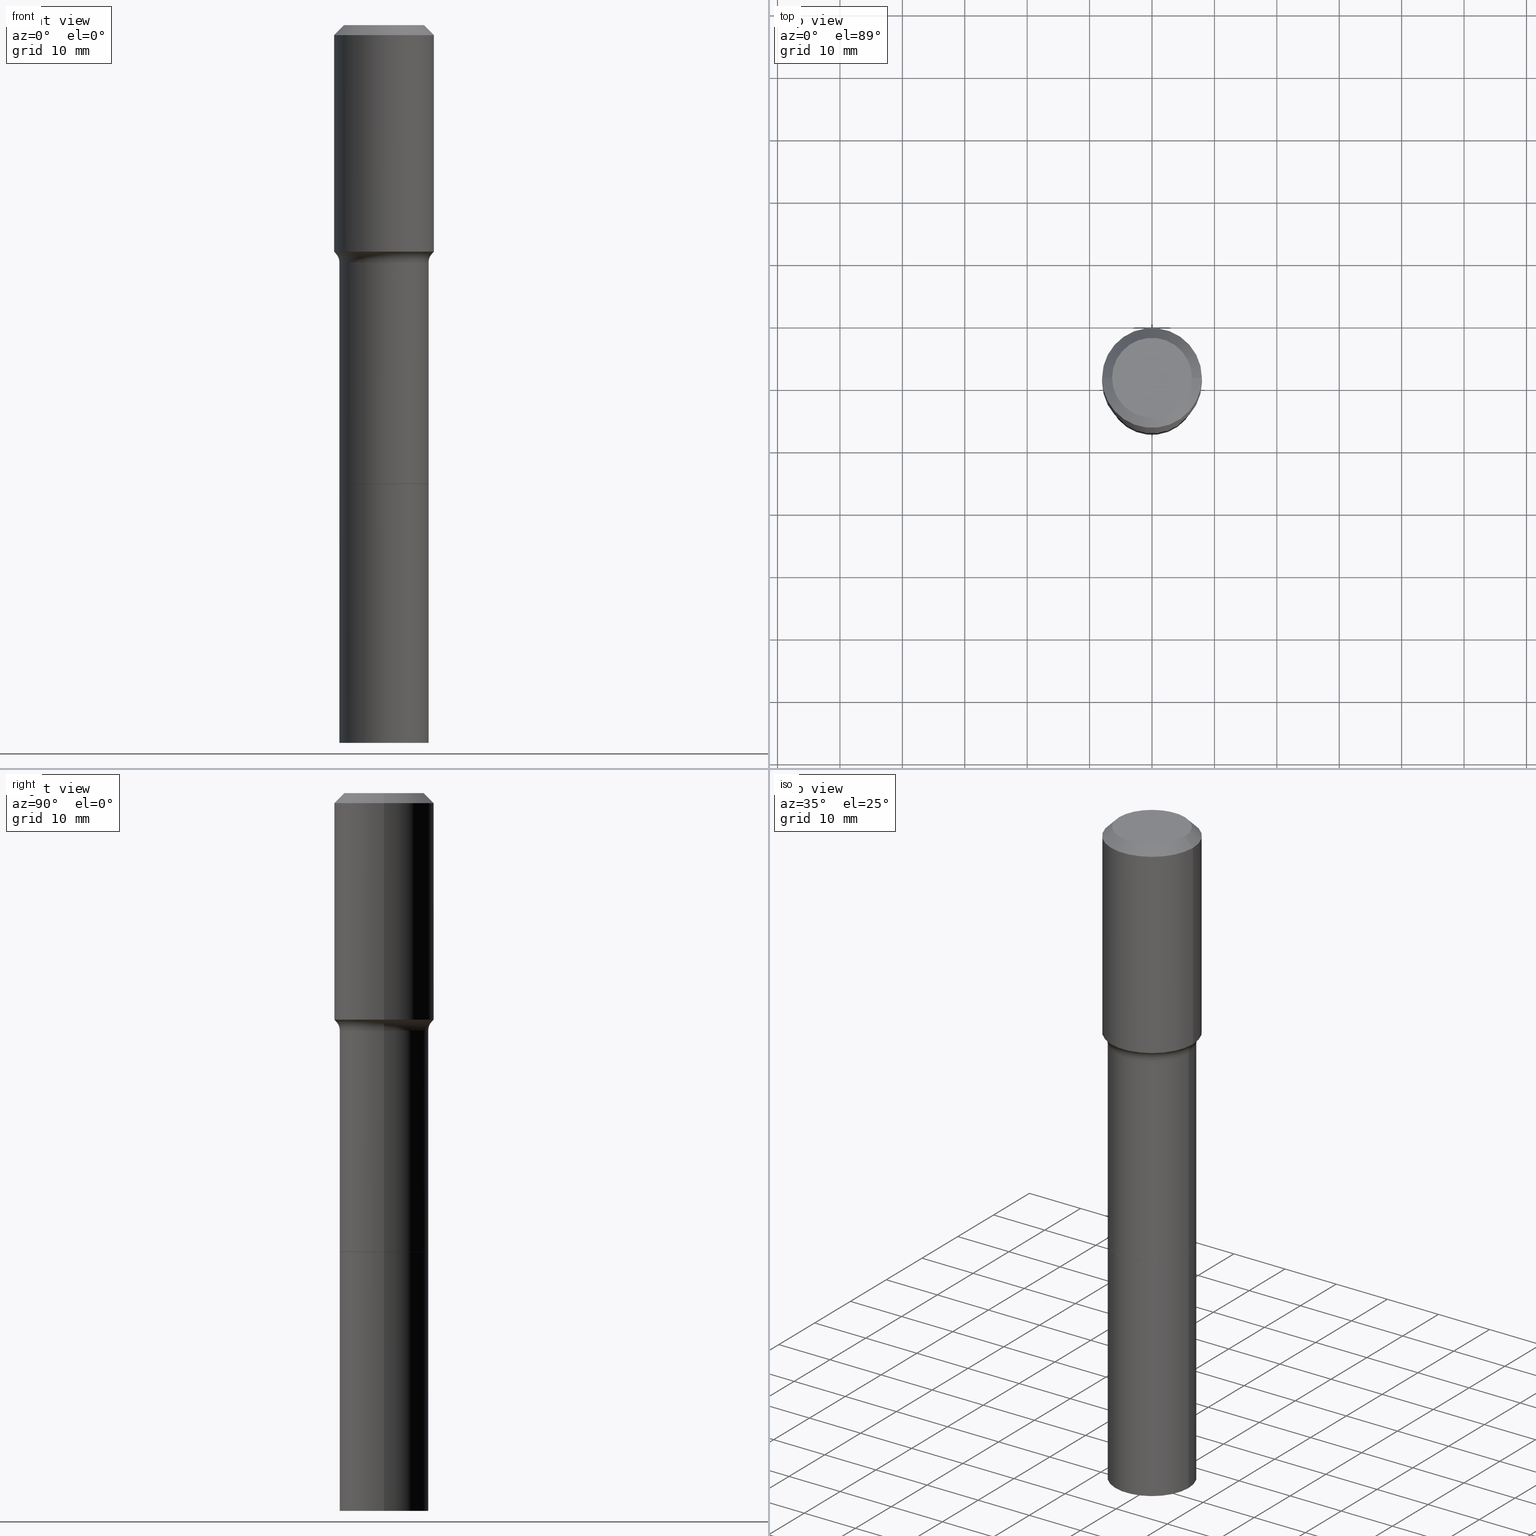
[diagram: canonical four-view strip — front | top / right | iso, engineering-drawing reading convention]
A machine part, canonical four-view strip (front | top / right | iso — engineering-drawing reading convention). The complete STEP part file that produces these views, byte-faithful:
ISO-10303-21;
HEADER;
FILE_DESCRIPTION (( 'STEP AP203' ),
    '1' );
FILE_NAME ('58849.STEP',
    '2025-04-01T15:25:43',
    ( '' ),
    ( '' ),
    'SwSTEP 2.0',
    'SolidWorks 2024',
    '' );
FILE_SCHEMA (( 'CONFIG_CONTROL_DESIGN' ));
ENDSEC;

DATA;
#1 = PERSON_AND_ORGANIZATION ( #7, #248 ) ;
#2 = VERTEX_POINT ( 'NONE', #342 ) ;
#3 = ADVANCED_FACE ( 'NONE', ( #262 ), #164, .T. ) ;
#4 = COORDINATED_UNIVERSAL_TIME_OFFSET ( 5, 0, .BEHIND. ) ;
#5 = AXIS2_PLACEMENT_3D ( 'NONE', #422, #339, #21 ) ;
#6 = CLOSED_SHELL ( 'NONE', ( #308, #192, #93, #298 ) ) ;
#7 = PERSON ( 'UNSPECIFIED', 'UNSPECIFIED', 'UNSPECIFIED', ('UNSPECIFIED'), ('UNSPECIFIED'), ('UNSPECIFIED') ) ;
#8 = EDGE_CURVE ( 'NONE', #120, #469, #272, .T. ) ;
#9 = EDGE_CURVE ( 'NONE', #353, #430, #295, .T. ) ;
#10 = PLANE ( 'NONE',  #293 ) ;
#11 = FACE_OUTER_BOUND ( 'NONE', #440, .T. ) ;
#12 = VECTOR ( 'NONE', #411, 39.37007874015748143 ) ;
#13 = AXIS2_PLACEMENT_3D ( 'NONE', #140, #345, #225 ) ;
#14 = CYLINDRICAL_SURFACE ( 'NONE', #125, 0.2812500000000000000 ) ;
#15 = DIRECTION ( 'NONE',  ( 1.000000000000000000, -6.982962677686264344E-15, 0.000000000000000000 ) ) ;
#16 = LINE ( 'NONE', #488, #343 ) ;
#17 = CARTESIAN_POINT ( 'NONE',  ( 3.659888615336674630E-29, -5.225350971712649586E-15, -1.496599999999999486 ) ) ;
#18 = DIRECTION ( 'NONE',  ( -1.000000000000000000, 6.982962677686265922E-15, -4.876176775795935793E-29 ) ) ;
#19 = AXIS2_PLACEMENT_3D ( 'NONE', #451, #206, #326 ) ;
#20 = DIRECTION ( 'NONE',  ( 1.000000000000000000, -6.982962677686266711E-15, 0.000000000000000000 ) ) ;
#21 = DIRECTION ( 'NONE',  ( 1.000000000000000000, -6.982962677686266711E-15, 0.000000000000000000 ) ) ;
#22 = AXIS2_PLACEMENT_3D ( 'NONE', #32, #100, #20 ) ;
#23 = ORIENTED_EDGE ( 'NONE', *, *, #261, .T. ) ;
#24 = DIMENSIONAL_EXPONENTS ( 1.000000000000000000, 0.000000000000000000, 0.000000000000000000, 0.000000000000000000, 0.000000000000000000, 0.000000000000000000, 0.000000000000000000 ) ;
#25 = EDGE_CURVE ( 'NONE', #469, #480, #136, .T. ) ;
#26 = DIRECTION ( 'NONE',  ( 1.000000000000000000, -6.982962677686265922E-15, 4.876176775795935232E-29 ) ) ;
#27 = CARTESIAN_POINT ( 'NONE',  ( 3.659888615336674630E-29, -5.225350971712649586E-15, -1.496599999999999486 ) ) ;
#28 = CARTESIAN_POINT ( 'NONE',  ( 0.000000000000000000, 0.000000000000000000, 0.000000000000000000 ) ) ;
#29 = LINE ( 'NONE', #304, #219 ) ;
#30 = EDGE_LOOP ( 'NONE', ( #121, #427, #34, #504 ) ) ;
#31 = CLOSED_SHELL ( 'NONE', ( #230, #393, #360, #3, #449, #72, #184, #280, #286, #375, #428, #124, #224, #137 ) ) ;
#32 = CARTESIAN_POINT ( 'NONE',  ( 3.526464158104493738E-29, -5.034856207930263103E-15, -1.442040131194999741 ) ) ;
#33 = EDGE_CURVE ( 'NONE', #482, #372, #483, .T. ) ;
#34 = ORIENTED_EDGE ( 'NONE', *, *, #232, .T. ) ;
#35 = EDGE_LOOP ( 'NONE', ( #113, #275 ) ) ;
#36 = CIRCLE ( 'NONE', #22, 0.3027417038704665608 ) ;
#37 = APPROVAL_ROLE ( '' ) ;
#38 = DIRECTION ( 'NONE',  ( -1.000000000000000000, 7.105427357601001859E-15, 0.000000000000000000 ) ) ;
#39 = EDGE_LOOP ( 'NONE', ( #384, #148, #507, #446 ) ) ;
#40 = VERTEX_POINT ( 'NONE', #227 ) ;
#41 = AXIS2_PLACEMENT_3D ( 'NONE', #294, #204, #15 ) ;
#42 = CALENDAR_DATE ( 2025, 1, 4 ) ;
#43 = ORIENTED_EDGE ( 'NONE', *, *, #64, .T. ) ;
#44 = LOCAL_TIME ( 11, 25, 43.00000000000000000, #4 ) ;
#45 = EDGE_CURVE ( 'NONE', #273, #2, #142, .T. ) ;
#46 = PERSON_AND_ORGANIZATION_ROLE ( 'design_supplier' ) ;
#47 = DATE_AND_TIME ( #80, #169 ) ;
#48 = EDGE_CURVE ( 'NONE', #40, #183, #95, .T. ) ;
#49 = CONICAL_SURFACE ( 'NONE', #197, 0.2807499999999999996, 0.7853981633973118326 ) ;
#50 = EDGE_CURVE ( 'NONE', #320, #2, #455, .T. ) ;
#51 = LINE ( 'NONE', #405, #495 ) ;
#52 = DIRECTION ( 'NONE',  ( 1.000000000000000000, -6.982962677686269866E-15, 0.000000000000000000 ) ) ;
#53 = FACE_OUTER_BOUND ( 'NONE', #186, .T. ) ;
#54 = CARTESIAN_POINT ( 'NONE',  ( 7.078654006383494547E-29, -1.010644188341536605E-14, -2.894599999999999174 ) ) ;
#55 = CARTESIAN_POINT ( 'NONE',  ( 7.078654006383494547E-29, -1.010644188341536605E-14, -2.894599999999999174 ) ) ;
#56 = AXIS2_PLACEMENT_3D ( 'NONE', #166, #325, #130 ) ;
#57 = AXIS2_PLACEMENT_3D ( 'NONE', #458, #176, #288 ) ;
#58 = AXIS2_PLACEMENT_3D ( 'NONE', #392, #85, #231 ) ;
#59 = DIRECTION ( 'NONE',  ( 1.000000000000000000, -6.982962677686266711E-15, 4.876115136096691995E-29 ) ) ;
#60 = CARTESIAN_POINT ( 'NONE',  ( -0.2812499999999998890, -5.666622112904015686E-15, -1.496599999999999486 ) ) ;
#61 = CARTESIAN_POINT ( 'NONE',  ( 0.000000000000000000, 0.000000000000000000, 0.000000000000000000 ) ) ;
#62 = CARTESIAN_POINT ( 'NONE',  ( 0.3149500000000000632, -2.380642253931875584E-15, -0.06299000000000040678 ) ) ;
#63 = CARTESIAN_POINT ( 'NONE',  ( 7.078654006383494547E-29, -1.010644188341536605E-14, -2.894599999999999174 ) ) ;
#64 = EDGE_CURVE ( 'NONE', #320, #469, #51, .T. ) ;
#65 = VECTOR ( 'NONE', #171, 39.37007874015748143 ) ;
#66 = FACE_OUTER_BOUND ( 'NONE', #357, .T. ) ;
#67 = DIRECTION ( 'NONE',  ( 1.000000000000000000, -6.982962677686269866E-15, 0.000000000000000000 ) ) ;
#68 = VECTOR ( 'NONE', #267, 39.37007874015748854 ) ;
#69 = DIRECTION ( 'NONE',  ( 1.000000000000000000, -6.982962677686269866E-15, 0.000000000000000000 ) ) ;
#70 = CARTESIAN_POINT ( 'NONE',  ( 0.3027417038704663943, -7.148890227036876772E-15, -1.442040131194999741 ) ) ;
#71 = CARTESIAN_POINT ( 'NONE',  ( 7.078654006383494547E-29, -1.010644188341536605E-14, -2.894599999999999174 ) ) ;
#72 = ADVANCED_FACE ( 'NONE', ( #250 ), #208, .T. ) ;
#73 = DIRECTION ( 'NONE',  ( -2.445468806185136597E-29, 3.491481338843145583E-15, 1.000000000000000000 ) ) ;
#74 = EDGE_LOOP ( 'NONE', ( #388, #391, #278, #418 ) ) ;
#75 = CIRCLE ( 'NONE', #133, 0.2812499999999998890 ) ;
#76 = AXIS2_PLACEMENT_3D ( 'NONE', #266, #471, #426 ) ;
#77 = COORDINATED_UNIVERSAL_TIME_OFFSET ( 5, 0, .BEHIND. ) ;
#78 = DIRECTION ( 'NONE',  ( -2.445468806185136597E-29, 3.491481338843145583E-15, 1.000000000000000000 ) ) ;
#79 = ORIENTED_EDGE ( 'NONE', *, *, #205, .T. ) ;
#80 = CALENDAR_DATE ( 2025, 1, 4 ) ;
#81 = ORIENTED_EDGE ( 'NONE', *, *, #50, .T. ) ;
#82 = EDGE_CURVE ( 'NONE', #429, #372, #16, .T. ) ;
#83 = ORIENTED_EDGE ( 'NONE', *, *, #354, .T. ) ;
#84 = CIRCLE ( 'NONE', #41, 0.2807499999999999996 ) ;
#85 = DIRECTION ( 'NONE',  ( 0.000000000000000000, 0.000000000000000000, 1.000000000000000000 ) ) ;
#86 = ORIENTED_EDGE ( 'NONE', *, *, #98, .F. ) ;
#87 = TOROIDAL_SURFACE ( 'NONE', #424, 0.3612499999999998490, 0.07999999999999996003 ) ;
#88 = CIRCLE ( 'NONE', #366, 0.2812500000000000000 ) ;
#89 = SECURITY_CLASSIFICATION ( '', '', #270 ) ;
#90 = DIRECTION ( 'NONE',  ( -2.445468806185136597E-29, 3.491481338843145583E-15, 1.000000000000000000 ) ) ;
#91 = FACE_OUTER_BOUND ( 'NONE', #234, .T. ) ;
#92 = FACE_OUTER_BOUND ( 'NONE', #39, .T. ) ;
#93 = ADVANCED_FACE ( 'NONE', ( #92 ), #409, .T. ) ;
#94 = CARTESIAN_POINT ( 'NONE',  ( -9.427742298522569579E-47, 1.346031739168368629E-32, 3.855188123715871501E-18 ) ) ;
#95 = CIRCLE ( 'NONE', #434, 0.2812500000000000000 ) ;
#96 = DIRECTION ( 'NONE',  ( 1.000000000000000000, -6.982962677686266711E-15, 0.000000000000000000 ) ) ;
#97 = CARTESIAN_POINT ( 'NONE',  ( -0.2807499999999999996, -8.111593152768885961E-15, -2.894599999999999174 ) ) ;
#98 = EDGE_CURVE ( 'NONE', #353, #429, #364, .T. ) ;
#99 = EDGE_CURVE ( 'NONE', #376, #40, #456, .T. ) ;
#100 = DIRECTION ( 'NONE',  ( -2.445468806185136597E-29, 3.491481338843145583E-15, 1.000000000000000000 ) ) ;
#101 = CARTESIAN_POINT ( 'NONE',  ( 7.078654006383494547E-29, -1.010644188341536605E-14, -2.894599999999999174 ) ) ;
#102 = DIRECTION ( 'NONE',  ( 2.445468806185136597E-29, -3.491481338843145583E-15, -1.000000000000000000 ) ) ;
#103 = FACE_OUTER_BOUND ( 'NONE', #359, .T. ) ;
#104 = DIRECTION ( 'NONE',  ( -1.000000000000000000, 6.982962677686266711E-15, 0.000000000000000000 ) ) ;
#105 = DIRECTION ( 'NONE',  ( 1.000000000000000000, -6.982962677686265133E-15, 0.000000000000000000 ) ) ;
#106 = LOCAL_TIME ( 11, 25, 43.00000000000000000, #235 ) ;
#107 = ORIENTED_EDGE ( 'NONE', *, *, #9, .F. ) ;
#108 = CARTESIAN_POINT ( 'NONE',  ( 0.3612499999999998490, -7.747946239026812962E-15, -1.496599999999999486 ) ) ;
#109 = EDGE_LOOP ( 'NONE', ( #151, #153 ) ) ;
#110 = ORIENTED_EDGE ( 'NONE', *, *, #354, .F. ) ;
#111 = PERSON_AND_ORGANIZATION ( #7, #248 ) ;
#112 = ORIENTED_EDGE ( 'NONE', *, *, #50, .F. ) ;
#113 = ORIENTED_EDGE ( 'NONE', *, *, #400, .F. ) ;
#114 = AXIS2_PLACEMENT_3D ( 'NONE', #178, #300, #144 ) ;
#115 = PRODUCT_DEFINITION_FORMATION_WITH_SPECIFIED_SOURCE ( 'ANY', '', #182, .NOT_KNOWN. ) ;
#116 = VERTEX_POINT ( 'NONE', #333 ) ;
#117 = ORIENTED_EDGE ( 'NONE', *, *, #415, .T. ) ;
#118 = DATE_AND_TIME ( #42, #44 ) ;
#119 = EDGE_CURVE ( 'NONE', #347, #120, #303, .T. ) ;
#120 = VERTEX_POINT ( 'NONE', #490 ) ;
#121 = ORIENTED_EDGE ( 'NONE', *, *, #119, .F. ) ;
#122 = MECHANICAL_CONTEXT ( 'NONE', #328, 'mechanical' ) ;
#123 = VECTOR ( 'NONE', #331, 39.37007874015748143 ) ;
#124 = ADVANCED_FACE ( 'NONE', ( #255 ), #10, .F. ) ;
#125 = AXIS2_PLACEMENT_3D ( 'NONE', #165, #329, #485 ) ;
#126 = LINE ( 'NONE', #489, #12 ) ;
#127 = CARTESIAN_POINT ( 'NONE',  ( -0.2812500000000000000, -8.108040439090084273E-15, -2.894599999999999174 ) ) ;
#128 = CONICAL_SURFACE ( 'NONE', #448, 0.3149500000000000632, 0.7853981633974456145 ) ;
#129 = EDGE_CURVE ( 'NONE', #116, #376, #88, .T. ) ;
#130 = DIRECTION ( 'NONE',  ( 1.000000000000000000, -6.982962677686264344E-15, 0.000000000000000000 ) ) ;
#131 = CARTESIAN_POINT ( 'NONE',  ( -0.3149500000000002298, -2.751292104515327607E-15, -1.428948336422972032 ) ) ;
#132 = DIRECTION ( 'NONE',  ( 2.438088387897960049E-29, -3.491481338843145188E-15, -1.000000000000000000 ) ) ;
#133 = AXIS2_PLACEMENT_3D ( 'NONE', #216, #371, #105 ) ;
#134 = DIRECTION ( 'NONE',  ( 1.000000000000000000, -6.982962677686269866E-15, 0.000000000000000000 ) ) ;
#135 = EDGE_CURVE ( 'NONE', #430, #353, #84, .T. ) ;
#136 = CIRCLE ( 'NONE', #188, 0.3149500000000000632 ) ;
#137 = ADVANCED_FACE ( 'NONE', ( #11 ), #271, .T. ) ;
#138 = DIRECTION ( 'NONE',  ( -2.445468806185136597E-29, 3.491481338843145583E-15, 1.000000000000000000 ) ) ;
#139 = CARTESIAN_POINT ( 'NONE',  ( 1.107210456688382298E-28, -1.580803090974622389E-14, -4.527599999999999625 ) ) ;
#140 = CARTESIAN_POINT ( 'NONE',  ( 1.540400801016027380E-30, -2.199284095337311367E-16, -0.06299000000000040678 ) ) ;
#141 = LINE ( 'NONE', #425, #155 ) ;
#142 = LINE ( 'NONE', #193, #253 ) ;
#143 = DIRECTION ( 'NONE',  ( -2.445468806185136597E-29, 3.491481338843145583E-15, 1.000000000000000000 ) ) ;
#144 = DIRECTION ( 'NONE',  ( 1.000000000000000000, -6.982962677686268288E-15, 0.000000000000000000 ) ) ;
#145 = EDGE_LOOP ( 'NONE', ( #511, #318, #465, #312 ) ) ;
#146 =( NAMED_UNIT ( * ) PLANE_ANGLE_UNIT ( ) SI_UNIT ( $, .RADIAN. ) );
#147 = AXIS2_PLACEMENT_3D ( 'NONE', #462, #177, #381 ) ;
#148 = ORIENTED_EDGE ( 'NONE', *, *, #129, .T. ) ;
#149 = CARTESIAN_POINT ( 'NONE',  ( 3.526464158104493738E-29, -5.034856207930263103E-15, -1.442040131194999741 ) ) ;
#150 = ORIENTED_EDGE ( 'NONE', *, *, #135, .F. ) ;
#151 = ORIENTED_EDGE ( 'NONE', *, *, #194, .T. ) ;
#152 = PERSON_AND_ORGANIZATION_ROLE ( 'classification_officer' ) ;
#153 = ORIENTED_EDGE ( 'NONE', *, *, #119, .T. ) ;
#154 = EDGE_CURVE ( 'NONE', #116, #183, #486, .T. ) ;
#155 = VECTOR ( 'NONE', #380, 39.37007874015748143 ) ;
#156 = CC_DESIGN_PERSON_AND_ORGANIZATION_ASSIGNMENT ( #474, #191, ( #323 ) ) ;
#157 = COORDINATED_UNIVERSAL_TIME_OFFSET ( 5, 0, .BEHIND. ) ;
#158 = CIRCLE ( 'NONE', #209, 0.07999999999999996003 ) ;
#159 = ORIENTED_EDGE ( 'NONE', *, *, #25, .F. ) ;
#160 = PERSON_AND_ORGANIZATION_ROLE ( 'creator' ) ;
#161 = ORIENTED_EDGE ( 'NONE', *, *, #98, .T. ) ;
#162 = EDGE_CURVE ( 'NONE', #2, #320, #361, .T. ) ;
#163 = PERSON_AND_ORGANIZATION ( #7, #248 ) ;
#164 = CONICAL_SURFACE ( 'NONE', #76, 0.3027417038704665608, 0.7504915783575520916 ) ;
#165 = CARTESIAN_POINT ( 'NONE',  ( 7.078654006383494547E-29, -1.010644188341536605E-14, -2.894599999999999174 ) ) ;
#166 = CARTESIAN_POINT ( 'NONE',  ( 7.078654006383494547E-29, -1.010644188341536605E-14, -2.894599999999999174 ) ) ;
#167 = CC_DESIGN_DATE_AND_TIME_ASSIGNMENT ( #432, #200, ( #89 ) ) ;
#168 = DIRECTION ( 'NONE',  ( 1.000000000000000000, -6.982962677686268288E-15, 0.000000000000000000 ) ) ;
#169 = LOCAL_TIME ( 11, 25, 43.00000000000000000, #516 ) ;
#170 = DIRECTION ( 'NONE',  ( -2.445468806185136597E-29, 3.491481338843145583E-15, 1.000000000000000000 ) ) ;
#171 = DIRECTION ( 'NONE',  ( 0.7071067811864509833, -2.468850131081245741E-15, 0.7071067811866440511 ) ) ;
#172 = DIRECTION ( 'NONE',  ( -2.445468806185136597E-29, 3.491481338843145583E-15, 1.000000000000000000 ) ) ;
#173 = ORIENTED_EDGE ( 'NONE', *, *, #436, .F. ) ;
#174 = DIRECTION ( 'NONE',  ( -2.445468806185136597E-29, 3.491481338843145583E-15, 1.000000000000000000 ) ) ;
#175 = CONICAL_SURFACE ( 'NONE', #244, 0.3027417038704665608, 0.7504915783575520916 ) ;
#176 = DIRECTION ( 'NONE',  ( -2.445468806185136597E-29, 3.491481338843145583E-15, 1.000000000000000000 ) ) ;
#177 = DIRECTION ( 'NONE',  ( -2.445468806185136597E-29, 3.491481338843145583E-15, 1.000000000000000000 ) ) ;
#178 = CARTESIAN_POINT ( 'NONE',  ( 7.077431271980401746E-29, -1.010469614274594375E-14, -2.894099999999999007 ) ) ;
#179 = DIRECTION ( 'NONE',  ( -0.7071067811865454633, 2.468850131082235761E-15, -0.7071067811865493491 ) ) ;
#180 = CARTESIAN_POINT ( 'NONE',  ( 0.3149500000000000632, -2.419212504871021303E-15, -0.06299000000000040678 ) ) ;
#181 = DIRECTION ( 'NONE',  ( 1.000000000000000000, -6.982962677686264344E-15, 0.000000000000000000 ) ) ;
#182 = PRODUCT ( '58849', '58849', '', ( #122 ) ) ;
#183 = VERTEX_POINT ( 'NONE', #406 ) ;
#184 = ADVANCED_FACE ( 'NONE', ( #53 ), #417, .T. ) ;
#185 = FACE_OUTER_BOUND ( 'NONE', #510, .T. ) ;
#186 = EDGE_LOOP ( 'NONE', ( #414, #233, #23, #435 ) ) ;
#187 = ORIENTED_EDGE ( 'NONE', *, *, #210, .F. ) ;
#188 = AXIS2_PLACEMENT_3D ( 'NONE', #340, #73, #386 ) ;
#189 =( NAMED_UNIT ( * ) SI_UNIT ( $, .STERADIAN. ) SOLID_ANGLE_UNIT ( ) );
#190 = ORIENTED_EDGE ( 'NONE', *, *, #135, .T. ) ;
#191 = PERSON_AND_ORGANIZATION_ROLE ( 'creator' ) ;
#192 = ADVANCED_FACE ( 'NONE', ( #292 ), #252, .T. ) ;
#193 = CARTESIAN_POINT ( 'NONE',  ( 0.3027417038704665608, -7.148890227036879927E-15, -1.442040131194999741 ) ) ;
#194 = EDGE_CURVE ( 'NONE', #120, #347, #313, .T. ) ;
#195 = ORIENTED_EDGE ( 'NONE', *, *, #473, .F. ) ;
#196 = VERTEX_POINT ( 'NONE', #212 ) ;
#197 = AXIS2_PLACEMENT_3D ( 'NONE', #460, #378, #181 ) ;
#198 = CALENDAR_DATE ( 2025, 1, 4 ) ;
#199 = ORIENTED_EDGE ( 'NONE', *, *, #407, .T. ) ;
#200 = DATE_TIME_ROLE ( 'classification_date' ) ;
#201 = DIRECTION ( 'NONE',  ( 1.000000000000000000, -6.982962677686268288E-15, 0.000000000000000000 ) ) ;
#202 = CIRCLE ( 'NONE', #334, 0.2812500000000000000 ) ;
#203 = AXIS2_PLACEMENT_3D ( 'NONE', #479, #285, #201 ) ;
#204 = DIRECTION ( 'NONE',  ( -2.445468806185136597E-29, 3.491481338843145583E-15, 1.000000000000000000 ) ) ;
#205 = EDGE_CURVE ( 'NONE', #196, #372, #75, .T. ) ;
#206 = DIRECTION ( 'NONE',  ( 2.438088387897960049E-29, -3.491481338843145188E-15, -1.000000000000000000 ) ) ;
#207 = AXIS2_PLACEMENT_3D ( 'NONE', #450, #90, #168 ) ;
#208 = CYLINDRICAL_SURFACE ( 'NONE', #57, 0.2812499999999999445 ) ;
#209 = AXIS2_PLACEMENT_3D ( 'NONE', #108, #310, #222 ) ;
#210 = EDGE_CURVE ( 'NONE', #482, #320, #29, .T. ) ;
#211 = CARTESIAN_POINT ( 'NONE',  ( 0.2807499999999999996, -1.206690865517578476E-14, -2.894599999999999174 ) ) ;
#212 = CARTESIAN_POINT ( 'NONE',  ( 0.2812499999999998890, -7.189309224811911309E-15, -1.496599999999999486 ) ) ;
#213 = ORIENTED_EDGE ( 'NONE', *, *, #210, .T. ) ;
#214 = FACE_OUTER_BOUND ( 'NONE', #282, .T. ) ;
#215 = ADVANCED_BREP_SHAPE_REPRESENTATION ( '58849', ( #317, #492, #58 ), #327 ) ;
#216 = CARTESIAN_POINT ( 'NONE',  ( 3.659888615336674630E-29, -5.225350971712649586E-15, -1.496599999999999486 ) ) ;
#217 = EDGE_LOOP ( 'NONE', ( #237, #43, #268, #443 ) ) ;
#218 = CARTESIAN_POINT ( 'NONE',  ( 0.2812500000000000000, -1.777198916284548562E-14, -4.527599999999999625 ) ) ;
#219 = VECTOR ( 'NONE', #463, 39.37007874015748854 ) ;
#220 = DIRECTION ( 'NONE',  ( -2.438088387897960049E-29, 3.491481338843145188E-15, 1.000000000000000000 ) ) ;
#221 = AXIS2_PLACEMENT_3D ( 'NONE', #509, #459, #467 ) ;
#222 = DIRECTION ( 'NONE',  ( 1.000000000000000000, -6.982962677686262766E-15, 0.000000000000000000 ) ) ;
#223 = FACE_OUTER_BOUND ( 'NONE', #441, .T. ) ;
#224 = ADVANCED_FACE ( 'NONE', ( #103 ), #260, .F. ) ;
#225 = DIRECTION ( 'NONE',  ( -1.000000000000000000, 6.982962677686266711E-15, 0.000000000000000000 ) ) ;
#226 = DIRECTION ( 'NONE',  ( -2.445468806185136597E-29, 3.491481338843145583E-15, 1.000000000000000000 ) ) ;
#227 = CARTESIAN_POINT ( 'NONE',  ( 0.2812500000000000000, -1.207040013651462935E-14, -2.894599999999999174 ) ) ;
#228 = VECTOR ( 'NONE', #374, 39.37007874015748143 ) ;
#229 = ORIENTED_EDGE ( 'NONE', *, *, #491, .T. ) ;
#230 = ADVANCED_FACE ( 'NONE', ( #503 ), #49, .T. ) ;
#231 = DIRECTION ( 'NONE',  ( 1.000000000000000000, 0.000000000000000000, 0.000000000000000000 ) ) ;
#232 = EDGE_CURVE ( 'NONE', #480, #469, #487, .T. ) ;
#233 = ORIENTED_EDGE ( 'NONE', *, *, #436, .T. ) ;
#234 = EDGE_LOOP ( 'NONE', ( #238, #350 ) ) ;
#235 = COORDINATED_UNIVERSAL_TIME_OFFSET ( 5, 0, .BEHIND. ) ;
#236 = VERTEX_POINT ( 'NONE', #265 ) ;
#237 = ORIENTED_EDGE ( 'NONE', *, *, #162, .T. ) ;
#238 = ORIENTED_EDGE ( 'NONE', *, *, #48, .T. ) ;
#239 = CONICAL_SURFACE ( 'NONE', #13, 0.3149500000000000632, 0.7853981633974456145 ) ;
#240 = APPROVAL_STATUS ( 'not_yet_approved' ) ;
#241 = LOCAL_TIME ( 11, 25, 43.00000000000000000, #157 ) ;
#242 = PRODUCT_RELATED_PRODUCT_CATEGORY ( 'detail', '', ( #182 ) ) ;
#243 = APPROVAL_DATE_TIME ( #118, #464 ) ;
#244 = AXIS2_PLACEMENT_3D ( 'NONE', #420, #404, #363 ) ;
#245 = EDGE_CURVE ( 'NONE', #236, #429, #431, .T. ) ;
#246 = EDGE_CURVE ( 'NONE', #183, #40, #202, .T. ) ;
#247 = DIRECTION ( 'NONE',  ( -2.445468806185136877E-29, 3.491481338843145188E-15, 1.000000000000000000 ) ) ;
#248 = ORGANIZATION ( 'UNSPECIFIED', 'UNSPECIFIED', '' ) ;
#249 = DIRECTION ( 'NONE',  ( 1.000000000000000000, -6.982962677686266711E-15, 4.876115136096691995E-29 ) ) ;
#250 = FACE_OUTER_BOUND ( 'NONE', #74, .T. ) ;
#251 = LINE ( 'NONE', #211, #65 ) ;
#252 = PLANE ( 'NONE',  #19 ) ;
#253 = VECTOR ( 'NONE', #423, 39.37007874015748854 ) ;
#254 = CARTESIAN_POINT ( 'NONE',  ( 0.2807499999999999996, -1.206690865517578476E-14, -2.894599999999999174 ) ) ;
#255 = FACE_OUTER_BOUND ( 'NONE', #109, .T. ) ;
#256 = PRODUCT_DEFINITION_SHAPE ( 'NONE', 'NONE',  #323 ) ;
#257 = CARTESIAN_POINT ( 'NONE',  ( 7.077431271980401746E-29, -1.010469614274594375E-14, -2.894099999999999007 ) ) ;
#258 = FACE_OUTER_BOUND ( 'NONE', #311, .T. ) ;
#259 = AXIS2_PLACEMENT_3D ( 'NONE', #28, #143, #264 ) ;
#260 = PLANE ( 'NONE',  #494 ) ;
#261 = EDGE_CURVE ( 'NONE', #236, #196, #141, .T. ) ;
#262 = FACE_OUTER_BOUND ( 'NONE', #344, .T. ) ;
#263 = CIRCLE ( 'NONE', #518, 0.3027417038704665608 ) ;
#264 = DIRECTION ( 'NONE',  ( 1.000000000000000000, -6.982962677686265922E-15, 4.876176775795935232E-29 ) ) ;
#265 = CARTESIAN_POINT ( 'NONE',  ( 0.2812500000000000555, -1.206865439584520705E-14, -2.894099999999999007 ) ) ;
#266 = CARTESIAN_POINT ( 'NONE',  ( 3.526464158104493738E-29, -5.034856207930263103E-15, -1.442040131194999741 ) ) ;
#267 = DIRECTION ( 'NONE',  ( 0.7071067811865454633, -7.319954787623246579E-15, -0.7071067811865493491 ) ) ;
#268 = ORIENTED_EDGE ( 'NONE', *, *, #232, .F. ) ;
#269 = ORIENTED_EDGE ( 'NONE', *, *, #162, .F. ) ;
#270 = SECURITY_CLASSIFICATION_LEVEL ( 'unclassified' ) ;
#271 = CONICAL_SURFACE ( 'NONE', #56, 0.2807499999999999996, 0.7853981633973118326 ) ;
#272 = LINE ( 'NONE', #461, #387 ) ;
#273 = VERTEX_POINT ( 'NONE', #70 ) ;
#274 = APPROVAL_PERSON_ORGANIZATION ( #284, #464, #37 ) ;
#275 = ORIENTED_EDGE ( 'NONE', *, *, #129, .F. ) ;
#276 = ORIENTED_EDGE ( 'NONE', *, *, #194, .F. ) ;
#277 = APPROVAL_STATUS ( 'not_yet_approved' ) ;
#278 = ORIENTED_EDGE ( 'NONE', *, *, #205, .F. ) ;
#279 = APPROVAL_DATE_TIME ( #442, #367 ) ;
#280 = ADVANCED_FACE ( 'NONE', ( #223 ), #352, .F. ) ;
#281 = APPLICATION_CONTEXT ( 'configuration controlled 3d designs of mechanical parts and assemblies' ) ;
#282 = EDGE_LOOP ( 'NONE', ( #195, #276, #346, #433 ) ) ;
#283 = VECTOR ( 'NONE', #453, 39.37007874015748143 ) ;
#284 = PERSON_AND_ORGANIZATION ( #7, #248 ) ;
#285 = DIRECTION ( 'NONE',  ( -2.445468806185136597E-29, 3.491481338843145583E-15, 1.000000000000000000 ) ) ;
#286 = ADVANCED_FACE ( 'NONE', ( #185 ), #175, .T. ) ;
#287 = CC_DESIGN_PERSON_AND_ORGANIZATION_ASSIGNMENT ( #1, #358, ( #182 ) ) ;
#288 = DIRECTION ( 'NONE',  ( 1.000000000000000000, -6.982962677686268288E-15, 4.876176775795935793E-29 ) ) ;
#289 = AXIS2_PLACEMENT_3D ( 'NONE', #257, #335, #416 ) ;
#290 = DIRECTION ( 'NONE',  ( 1.000000000000000000, -6.982962677686268288E-15, 4.876176775795935793E-29 ) ) ;
#291 = CARTESIAN_POINT ( 'NONE',  ( 0.2519600000000000173, -2.054606664725195453E-15, 3.855188123729206640E-18 ) ) ;
#292 = FACE_OUTER_BOUND ( 'NONE', #35, .T. ) ;
#293 = AXIS2_PLACEMENT_3D ( 'NONE', #297, #132, #18 ) ;
#294 = CARTESIAN_POINT ( 'NONE',  ( 7.078654006383494547E-29, -1.010644188341536605E-14, -2.894599999999999174 ) ) ;
#295 = CIRCLE ( 'NONE', #362, 0.2807499999999999996 ) ;
#296 = DIRECTION ( 'NONE',  ( 1.000000000000000000, -6.982962677686266711E-15, 4.883557194083112901E-29 ) ) ;
#297 = CARTESIAN_POINT ( 'NONE',  ( -4.713871149261284790E-47, 6.730158695841843144E-33, 1.927594061857935750E-18 ) ) ;
#298 = ADVANCED_FACE ( 'NONE', ( #91 ), #408, .F. ) ;
#299 = CARTESIAN_POINT ( 'NONE',  ( -0.2812500000000000555, -5.666622112904014897E-15, -2.894099999999999007 ) ) ;
#300 = DIRECTION ( 'NONE',  ( -2.445468806185136597E-29, 3.491481338843145583E-15, 1.000000000000000000 ) ) ;
#301 = ORIENTED_EDGE ( 'NONE', *, *, #319, .T. ) ;
#302 = CARTESIAN_POINT ( 'NONE',  ( -0.3149500000000000632, -3.666830838863111328E-16, -0.06299000000000040678 ) ) ;
#303 = CIRCLE ( 'NONE', #396, 0.2519600000000000173 ) ;
#304 = CARTESIAN_POINT ( 'NONE',  ( -0.3027417038704665608, -2.883747022962308891E-15, -1.442040131194999741 ) ) ;
#305 = CIRCLE ( 'NONE', #289, 0.2812500000000000555 ) ;
#306 = CYLINDRICAL_SURFACE ( 'NONE', #259, 0.3149500000000001743 ) ;
#307 = ORIENTED_EDGE ( 'NONE', *, *, #64, .F. ) ;
#308 = ADVANCED_FACE ( 'NONE', ( #332 ), #14, .T. ) ;
#309 = ORIENTED_EDGE ( 'NONE', *, *, #9, .T. ) ;
#310 = DIRECTION ( 'NONE',  ( -6.982962677686266711E-15, -1.000000000000000000, 3.491481338843145583E-15 ) ) ;
#311 = EDGE_LOOP ( 'NONE', ( #394, #476, #398, #383 ) ) ;
#312 = ORIENTED_EDGE ( 'NONE', *, *, #99, .F. ) ;
#313 = CIRCLE ( 'NONE', #445, 0.2519600000000000173 ) ;
#314 = EDGE_LOOP ( 'NONE', ( #190, #161, #517, #110 ) ) ;
#315 = CC_DESIGN_APPROVAL ( #464, ( #323 ) ) ;
#316 = CALENDAR_DATE ( 2025, 1, 4 ) ;
#317 = MANIFOLD_SOLID_BREP ( 'Body-Move/Copy2[1]', #6 ) ;
#318 = ORIENTED_EDGE ( 'NONE', *, *, #154, .T. ) ;
#319 = EDGE_CURVE ( 'NONE', #2, #480, #126, .T. ) ;
#320 = VERTEX_POINT ( 'NONE', #131 ) ;
#321 = APPROVAL_ROLE ( '' ) ;
#322 = AXIS2_PLACEMENT_3D ( 'NONE', #500, #390, #38 ) ;
#323 = PRODUCT_DEFINITION ( 'UNKNOWN', '', #115, #439 ) ;
#324 = DIRECTION ( 'NONE',  ( -1.000000000000000000, 6.982962677686265922E-15, -4.876176775795935793E-29 ) ) ;
#325 = DIRECTION ( 'NONE',  ( -2.445468806185136597E-29, 3.491481338843145583E-15, 1.000000000000000000 ) ) ;
#326 = DIRECTION ( 'NONE',  ( -1.000000000000000000, 6.982962677686265922E-15, -4.876176775795935793E-29 ) ) ;
#327 =( GEOMETRIC_REPRESENTATION_CONTEXT ( 3 ) GLOBAL_UNCERTAINTY_ASSIGNED_CONTEXT ( ( #397 ) ) GLOBAL_UNIT_ASSIGNED_CONTEXT ( ( #506, #146, #189 ) ) REPRESENTATION_CONTEXT ( 'NONE', 'WORKASPACE' ) );
#328 = APPLICATION_CONTEXT ( 'configuration controlled 3d designs of mechanical parts and assemblies' ) ;
#329 = DIRECTION ( 'NONE',  ( -2.445468806185136597E-29, 3.491481338843145583E-15, 1.000000000000000000 ) ) ;
#330 = CC_DESIGN_PERSON_AND_ORGANIZATION_ASSIGNMENT ( #348, #46, ( #115 ) ) ;
#331 = DIRECTION ( 'NONE',  ( -0.7071067811864509833, 7.493145998870005484E-15, 0.7071067811866440511 ) ) ;
#332 = FACE_OUTER_BOUND ( 'NONE', #145, .T. ) ;
#333 = CARTESIAN_POINT ( 'NONE',  ( -0.2812500000000000000, -1.095883495225551399E-14, -4.527599999999999625 ) ) ;
#334 = AXIS2_PLACEMENT_3D ( 'NONE', #63, #499, #67 ) ;
#335 = DIRECTION ( 'NONE',  ( -2.445468806185136597E-29, 3.491481338843145583E-15, 1.000000000000000000 ) ) ;
#336 = DIRECTION ( 'NONE',  ( -2.445468806185136877E-29, 3.491481338843145188E-15, 1.000000000000000000 ) ) ;
#337 = APPROVAL ( #351, 'UNSPECIFIED' ) ;
#338 = FACE_OUTER_BOUND ( 'NONE', #30, .T. ) ;
#339 = DIRECTION ( 'NONE',  ( -2.445468806185136597E-29, 3.491481338843145583E-15, 1.000000000000000000 ) ) ;
#340 = CARTESIAN_POINT ( 'NONE',  ( 1.540400801016027380E-30, -2.199284095337311367E-16, -0.06299000000000040678 ) ) ;
#341 = DIRECTION ( 'NONE',  ( 1.000000000000000000, -6.982962677686265922E-15, 4.876176775795935793E-29 ) ) ;
#342 = CARTESIAN_POINT ( 'NONE',  ( 0.3149500000000002298, -7.188430546129055434E-15, -1.428948336422972032 ) ) ;
#343 = VECTOR ( 'NONE', #336, 39.37007874015748143 ) ;
#344 = EDGE_LOOP ( 'NONE', ( #229, #213, #269, #508 ) ) ;
#345 = DIRECTION ( 'NONE',  ( 2.445468806185136597E-29, -3.491481338843145583E-15, -1.000000000000000000 ) ) ;
#346 = ORIENTED_EDGE ( 'NONE', *, *, #8, .T. ) ;
#347 = VERTEX_POINT ( 'NONE', #291 ) ;
#348 = PERSON_AND_ORGANIZATION ( #7, #248 ) ;
#349 = CARTESIAN_POINT ( 'NONE',  ( 7.078654006383494547E-29, -1.010644188341536605E-14, -2.894599999999999174 ) ) ;
#350 = ORIENTED_EDGE ( 'NONE', *, *, #246, .T. ) ;
#351 = APPROVAL_STATUS ( 'not_yet_approved' ) ;
#352 = TOROIDAL_SURFACE ( 'NONE', #402, 0.3612499999999998490, 0.07999999999999996003 ) ;
#353 = VERTEX_POINT ( 'NONE', #452 ) ;
#354 = EDGE_CURVE ( 'NONE', #430, #236, #251, .T. ) ;
#355 = CIRCLE ( 'NONE', #147, 0.2812499999999998890 ) ;
#356 = CALENDAR_DATE ( 2025, 1, 4 ) ;
#357 = EDGE_LOOP ( 'NONE', ( #307, #81, #301, #159 ) ) ;
#358 = PERSON_AND_ORGANIZATION_ROLE ( 'design_owner' ) ;
#359 = EDGE_LOOP ( 'NONE', ( #150, #107 ) ) ;
#360 = ADVANCED_FACE ( 'NONE', ( #496 ), #306, .T. ) ;
#361 = CIRCLE ( 'NONE', #207, 0.3149500000000002298 ) ;
#362 = AXIS2_PLACEMENT_3D ( 'NONE', #71, #78, #475 ) ;
#363 = DIRECTION ( 'NONE',  ( 1.000000000000000000, -6.982962677686266711E-15, 0.000000000000000000 ) ) ;
#364 = LINE ( 'NONE', #97, #123 ) ;
#365 = DIRECTION ( 'NONE',  ( -2.445468806185136597E-29, 3.491481338843145583E-15, 1.000000000000000000 ) ) ;
#366 = AXIS2_PLACEMENT_3D ( 'NONE', #139, #365, #134 ) ;
#367 = APPROVAL ( #277, 'UNSPECIFIED' ) ;
#368 = DIRECTION ( 'NONE',  ( 2.438088387897960049E-29, -3.491481338843145188E-15, -1.000000000000000000 ) ) ;
#369 = DIRECTION ( 'NONE',  ( -2.445468806185136597E-29, 3.491481338843145583E-15, 1.000000000000000000 ) ) ;
#370 = CC_DESIGN_APPROVAL ( #367, ( #89 ) ) ;
#371 = DIRECTION ( 'NONE',  ( -2.445468806185136597E-29, 3.491481338843145583E-15, 1.000000000000000000 ) ) ;
#372 = VERTEX_POINT ( 'NONE', #60 ) ;
#373 = CYLINDRICAL_SURFACE ( 'NONE', #505, 0.3149500000000001743 ) ;
#374 = DIRECTION ( 'NONE',  ( -2.445468806185136877E-29, 3.491481338843145188E-15, 1.000000000000000000 ) ) ;
#375 = ADVANCED_FACE ( 'NONE', ( #66 ), #373, .T. ) ;
#376 = VERTEX_POINT ( 'NONE', #218 ) ;
#377 = CARTESIAN_POINT ( 'NONE',  ( -0.3027417038704663943, -2.883747022962309285E-15, -1.442040131194999741 ) ) ;
#378 = DIRECTION ( 'NONE',  ( -2.445468806185136597E-29, 3.491481338843145583E-15, 1.000000000000000000 ) ) ;
#379 = CARTESIAN_POINT ( 'NONE',  ( 1.540400801016027380E-30, -2.199284095337311367E-16, -0.06299000000000040678 ) ) ;
#380 = DIRECTION ( 'NONE',  ( -2.445468806185136877E-29, 3.491481338843145188E-15, 1.000000000000000000 ) ) ;
#381 = DIRECTION ( 'NONE',  ( 1.000000000000000000, -6.982962677686265133E-15, 0.000000000000000000 ) ) ;
#382 = DIRECTION ( 'NONE',  ( 1.000000000000000000, -6.982962677686266711E-15, 4.883557194083112901E-29 ) ) ;
#383 = ORIENTED_EDGE ( 'NONE', *, *, #407, .F. ) ;
#384 = ORIENTED_EDGE ( 'NONE', *, *, #154, .F. ) ;
#385 = CARTESIAN_POINT ( 'NONE',  ( 0.000000000000000000, 0.000000000000000000, 0.000000000000000000 ) ) ;
#386 = DIRECTION ( 'NONE',  ( 1.000000000000000000, -6.982962677686266711E-15, 0.000000000000000000 ) ) ;
#387 = VECTOR ( 'NONE', #179, 39.37007874015748854 ) ;
#388 = ORIENTED_EDGE ( 'NONE', *, *, #245, .T. ) ;
#389 = APPLICATION_PROTOCOL_DEFINITION ( 'international standard', 'config_control_design', 1994, #328 ) ;
#390 = DIRECTION ( 'NONE',  ( 7.105427357601001859E-15, 1.000000000000000000, -3.491481338843145583E-15 ) ) ;
#391 = ORIENTED_EDGE ( 'NONE', *, *, #82, .T. ) ;
#392 = CARTESIAN_POINT ( 'NONE',  ( 0.000000000000000000, 0.000000000000000000, 0.000000000000000000 ) ) ;
#393 = ADVANCED_FACE ( 'NONE', ( #338 ), #239, .T. ) ;
#394 = ORIENTED_EDGE ( 'NONE', *, *, #415, .F. ) ;
#395 = PERSON_AND_ORGANIZATION ( #7, #248 ) ;
#396 = AXIS2_PLACEMENT_3D ( 'NONE', #493, #369, #249 ) ;
#397 = UNCERTAINTY_MEASURE_WITH_UNIT (LENGTH_MEASURE( 1.000000000000000082E-05 ), #506, 'distance_accuracy_value', 'NONE');
#398 = ORIENTED_EDGE ( 'NONE', *, *, #501, .T. ) ;
#399 = APPROVAL_PERSON_ORGANIZATION ( #111, #337, #470 ) ;
#400 = EDGE_CURVE ( 'NONE', #376, #116, #477, .T. ) ;
#401 = PERSON_AND_ORGANIZATION ( #7, #248 ) ;
#402 = AXIS2_PLACEMENT_3D ( 'NONE', #27, #226, #382 ) ;
#403 = APPROVAL_PERSON_ORGANIZATION ( #395, #367, #321 ) ;
#404 = DIRECTION ( 'NONE',  ( -2.445468806185136597E-29, 3.491481338843145583E-15, 1.000000000000000000 ) ) ;
#405 = CARTESIAN_POINT ( 'NONE',  ( -0.3149500000000001743, 2.237854346276436774E-15, -1.549218606675783237E-29 ) ) ;
#406 = CARTESIAN_POINT ( 'NONE',  ( -0.2812500000000000000, -1.095883495225551399E-14, -2.894599999999999174 ) ) ;
#407 = EDGE_CURVE ( 'NONE', #273, #196, #158, .T. ) ;
#408 = PLANE ( 'NONE',  #515 ) ;
#409 = CYLINDRICAL_SURFACE ( 'NONE', #410, 0.2812500000000000000 ) ;
#410 = AXIS2_PLACEMENT_3D ( 'NONE', #55, #172, #52 ) ;
#411 = DIRECTION ( 'NONE',  ( -2.445468806185136877E-29, 3.491481338843145188E-15, 1.000000000000000000 ) ) ;
#412 = DIRECTION ( 'NONE',  ( -2.445468806185136597E-29, 3.491481338843145583E-15, 1.000000000000000000 ) ) ;
#413 = LOCAL_TIME ( 11, 25, 43.00000000000000000, #77 ) ;
#414 = ORIENTED_EDGE ( 'NONE', *, *, #82, .F. ) ;
#415 = EDGE_CURVE ( 'NONE', #482, #273, #263, .T. ) ;
#416 = DIRECTION ( 'NONE',  ( 1.000000000000000000, -6.982962677686268288E-15, 0.000000000000000000 ) ) ;
#417 = CYLINDRICAL_SURFACE ( 'NONE', #421, 0.2812499999999999445 ) ;
#418 = ORIENTED_EDGE ( 'NONE', *, *, #261, .F. ) ;
#419 =( LENGTH_UNIT ( ) NAMED_UNIT ( * ) SI_UNIT ( $, .METRE. ) );
#420 = CARTESIAN_POINT ( 'NONE',  ( 3.526464158104493738E-29, -5.034856207930263103E-15, -1.442040131194999741 ) ) ;
#421 = AXIS2_PLACEMENT_3D ( 'NONE', #61, #170, #290 ) ;
#422 = CARTESIAN_POINT ( 'NONE',  ( 1.540400801016027380E-30, -2.199284095337311367E-16, -0.06299000000000040678 ) ) ;
#423 = DIRECTION ( 'NONE',  ( 0.6819983600624913711, -2.208861293262402439E-15, 0.7313537016191770102 ) ) ;
#424 = AXIS2_PLACEMENT_3D ( 'NONE', #17, #138, #296 ) ;
#425 = CARTESIAN_POINT ( 'NONE',  ( 0.2812499999999999445, -1.963958253099262512E-15, 1.371424718192606732E-29 ) ) ;
#426 = DIRECTION ( 'NONE',  ( 1.000000000000000000, -6.982962677686266711E-15, 0.000000000000000000 ) ) ;
#427 = ORIENTED_EDGE ( 'NONE', *, *, #473, .T. ) ;
#428 = ADVANCED_FACE ( 'NONE', ( #214 ), #128, .T. ) ;
#429 = VERTEX_POINT ( 'NONE', #299 ) ;
#430 = VERTEX_POINT ( 'NONE', #254 ) ;
#431 = CIRCLE ( 'NONE', #114, 0.2812500000000000555 ) ;
#432 = DATE_AND_TIME ( #316, #241 ) ;
#433 = ORIENTED_EDGE ( 'NONE', *, *, #25, .T. ) ;
#434 = AXIS2_PLACEMENT_3D ( 'NONE', #349, #513, #69 ) ;
#435 = ORIENTED_EDGE ( 'NONE', *, *, #501, .F. ) ;
#436 = EDGE_CURVE ( 'NONE', #429, #236, #305, .T. ) ;
#437 = DATE_TIME_ROLE ( 'creation_date' ) ;
#438 = CC_DESIGN_DATE_AND_TIME_ASSIGNMENT ( #481, #437, ( #323 ) ) ;
#439 = DESIGN_CONTEXT ( 'detailed design', #281, 'design' ) ;
#440 = EDGE_LOOP ( 'NONE', ( #86, #309, #83, #173 ) ) ;
#441 = EDGE_LOOP ( 'NONE', ( #514, #472, #199, #79 ) ) ;
#442 = DATE_AND_TIME ( #198, #413 ) ;
#443 = ORIENTED_EDGE ( 'NONE', *, *, #319, .F. ) ;
#444 = SHAPE_DEFINITION_REPRESENTATION ( #256, #215 ) ;
#445 = AXIS2_PLACEMENT_3D ( 'NONE', #94, #412, #59 ) ;
#446 = ORIENTED_EDGE ( 'NONE', *, *, #246, .F. ) ;
#447 = CC_DESIGN_SECURITY_CLASSIFICATION ( #89, ( #115 ) ) ;
#448 = AXIS2_PLACEMENT_3D ( 'NONE', #379, #102, #104 ) ;
#449 = ADVANCED_FACE ( 'NONE', ( #258 ), #87, .F. ) ;
#450 = CARTESIAN_POINT ( 'NONE',  ( 3.494448582372522551E-29, -4.989146450791763986E-15, -1.428948336422972032 ) ) ;
#451 = CARTESIAN_POINT ( 'NONE',  ( 1.107210456688382298E-28, -1.580803090974622389E-14, -4.527599999999999625 ) ) ;
#452 = CARTESIAN_POINT ( 'NONE',  ( -0.2807499999999999996, -8.108943925594772393E-15, -2.894599999999999174 ) ) ;
#453 = DIRECTION ( 'NONE',  ( -2.445468806185136877E-29, 3.491481338843145188E-15, 1.000000000000000000 ) ) ;
#454 = CC_DESIGN_PERSON_AND_ORGANIZATION_ASSIGNMENT ( #401, #152, ( #89 ) ) ;
#455 = CIRCLE ( 'NONE', #203, 0.3149500000000002298 ) ;
#456 = LINE ( 'NONE', #497, #283 ) ;
#457 = LINE ( 'NONE', #62, #68 ) ;
#458 = CARTESIAN_POINT ( 'NONE',  ( 0.000000000000000000, 0.000000000000000000, 0.000000000000000000 ) ) ;
#459 = DIRECTION ( 'NONE',  ( -2.445468806185136597E-29, 3.491481338843145583E-15, 1.000000000000000000 ) ) ;
#460 = CARTESIAN_POINT ( 'NONE',  ( 7.078654006383494547E-29, -1.010644188341536605E-14, -2.894599999999999174 ) ) ;
#461 = CARTESIAN_POINT ( 'NONE',  ( -0.3149500000000000632, 1.979355685803559227E-15, -0.06299000000000040678 ) ) ;
#462 = CARTESIAN_POINT ( 'NONE',  ( 3.659888615336674630E-29, -5.225350971712649586E-15, -1.496599999999999486 ) ) ;
#463 = DIRECTION ( 'NONE',  ( -0.6819983600624913711, 7.399397606724258177E-15, 0.7313537016191770102 ) ) ;
#464 = APPROVAL ( #240, 'UNSPECIFIED' ) ;
#465 = ORIENTED_EDGE ( 'NONE', *, *, #48, .F. ) ;
#466 = CC_DESIGN_APPROVAL ( #337, ( #115 ) ) ;
#467 = DIRECTION ( 'NONE',  ( 1.000000000000000000, -6.982962677686269866E-15, 0.000000000000000000 ) ) ;
#468 = ORIENTED_EDGE ( 'NONE', *, *, #45, .T. ) ;
#469 = VERTEX_POINT ( 'NONE', #302 ) ;
#470 = APPROVAL_ROLE ( '' ) ;
#471 = DIRECTION ( 'NONE',  ( -2.445468806185136597E-29, 3.491481338843145583E-15, 1.000000000000000000 ) ) ;
#472 = ORIENTED_EDGE ( 'NONE', *, *, #491, .F. ) ;
#473 = EDGE_CURVE ( 'NONE', #347, #480, #457, .T. ) ;
#474 = PERSON_AND_ORGANIZATION ( #7, #248 ) ;
#475 = DIRECTION ( 'NONE',  ( 1.000000000000000000, -6.982962677686264344E-15, 0.000000000000000000 ) ) ;
#476 = ORIENTED_EDGE ( 'NONE', *, *, #33, .T. ) ;
#477 = CIRCLE ( 'NONE', #221, 0.2812500000000000000 ) ;
#478 = APPLICATION_PROTOCOL_DEFINITION ( 'international standard', 'config_control_design', 1994, #281 ) ;
#479 = CARTESIAN_POINT ( 'NONE',  ( 3.494448582372522551E-29, -4.989146450791763986E-15, -1.428948336422972032 ) ) ;
#480 = VERTEX_POINT ( 'NONE', #180 ) ;
#481 = DATE_AND_TIME ( #356, #106 ) ;
#482 = VERTEX_POINT ( 'NONE', #377 ) ;
#483 = CIRCLE ( 'NONE', #322, 0.07999999999999996003 ) ;
#484 = CC_DESIGN_PERSON_AND_ORGANIZATION_ASSIGNMENT ( #163, #160, ( #115 ) ) ;
#485 = DIRECTION ( 'NONE',  ( 1.000000000000000000, -6.982962677686269866E-15, 0.000000000000000000 ) ) ;
#486 = LINE ( 'NONE', #127, #228 ) ;
#487 = CIRCLE ( 'NONE', #5, 0.3149500000000000632 ) ;
#488 = CARTESIAN_POINT ( 'NONE',  ( -0.2812499999999999445, 1.998401444325281378E-15, -1.383450494134191988E-29 ) ) ;
#489 = CARTESIAN_POINT ( 'NONE',  ( 0.3149500000000001743, -2.199284095337290660E-15, 1.535751875536930690E-29 ) ) ;
#490 = CARTESIAN_POINT ( 'NONE',  ( -0.2519600000000000173, 1.869391481036695680E-15, 3.855188123703182704E-18 ) ) ;
#491 = EDGE_CURVE ( 'NONE', #273, #482, #36, .T. ) ;
#492 = MANIFOLD_SOLID_BREP ( 'Body-Move/Copy2[2]', #31 ) ;
#493 = CARTESIAN_POINT ( 'NONE',  ( -9.427742298522569579E-47, 1.346031739168368629E-32, 3.855188123715871501E-18 ) ) ;
#494 = AXIS2_PLACEMENT_3D ( 'NONE', #101, #220, #341 ) ;
#495 = VECTOR ( 'NONE', #247, 39.37007874015748143 ) ;
#496 = FACE_OUTER_BOUND ( 'NONE', #217, .T. ) ;
#497 = CARTESIAN_POINT ( 'NONE',  ( 0.2812500000000000000, -1.207040013651462935E-14, -2.894599999999999174 ) ) ;
#498 = DIRECTION ( 'NONE',  ( -2.445468806185136597E-29, 3.491481338843145583E-15, 1.000000000000000000 ) ) ;
#499 = DIRECTION ( 'NONE',  ( -2.445468806185136597E-29, 3.491481338843145583E-15, 1.000000000000000000 ) ) ;
#500 = CARTESIAN_POINT ( 'NONE',  ( -0.3612499999999998490, -2.658515338779289132E-15, -1.496599999999999486 ) ) ;
#501 = EDGE_CURVE ( 'NONE', #372, #196, #355, .T. ) ;
#502 = LENGTH_MEASURE_WITH_UNIT ( LENGTH_MEASURE( 0.02539999999999999897 ), #419 );
#503 = FACE_OUTER_BOUND ( 'NONE', #314, .T. ) ;
#504 = ORIENTED_EDGE ( 'NONE', *, *, #8, .F. ) ;
#505 = AXIS2_PLACEMENT_3D ( 'NONE', #385, #498, #26 ) ;
#506 =( CONVERSION_BASED_UNIT ( 'INCH', #502 ) LENGTH_UNIT ( ) NAMED_UNIT ( #24 ) );
#507 = ORIENTED_EDGE ( 'NONE', *, *, #99, .T. ) ;
#508 = ORIENTED_EDGE ( 'NONE', *, *, #45, .F. ) ;
#509 = CARTESIAN_POINT ( 'NONE',  ( 1.107210456688382298E-28, -1.580803090974622389E-14, -4.527599999999999625 ) ) ;
#510 = EDGE_LOOP ( 'NONE', ( #187, #117, #468, #112 ) ) ;
#511 = ORIENTED_EDGE ( 'NONE', *, *, #400, .T. ) ;
#512 = APPROVAL_DATE_TIME ( #47, #337 ) ;
#513 = DIRECTION ( 'NONE',  ( -2.445468806185136597E-29, 3.491481338843145583E-15, 1.000000000000000000 ) ) ;
#514 = ORIENTED_EDGE ( 'NONE', *, *, #33, .F. ) ;
#515 = AXIS2_PLACEMENT_3D ( 'NONE', #54, #368, #324 ) ;
#516 = COORDINATED_UNIVERSAL_TIME_OFFSET ( 5, 0, .BEHIND. ) ;
#517 = ORIENTED_EDGE ( 'NONE', *, *, #245, .F. ) ;
#518 = AXIS2_PLACEMENT_3D ( 'NONE', #149, #174, #96 ) ;
ENDSEC;
END-ISO-10303-21;
